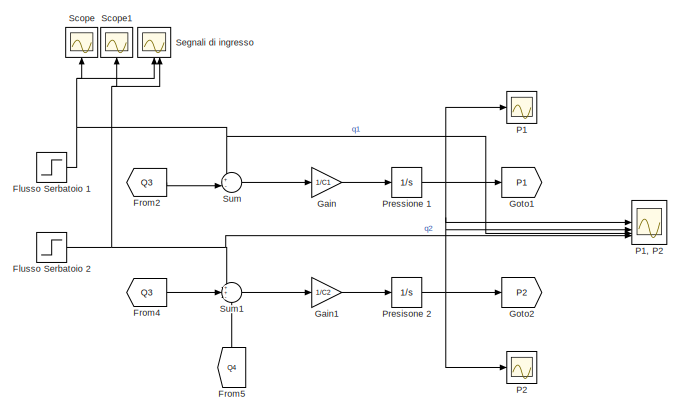
[diagram: root canvas - part 1/2, left side, full height]
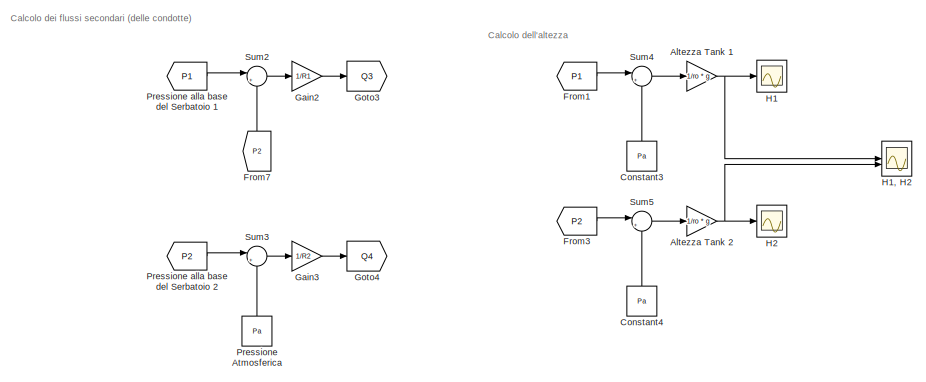
[diagram: root canvas - part 2/2, right side, full height]
MODEL slx_e9e96f8d6b7e
KIND model
CONFIG AbsTol = auto
CONFIG EnableMultiTasking = off
CONFIG FixedStep = auto
CONFIG MaxStep = auto
CONFIG MinStep = auto
CONFIG RelTol = 1e-3
CONFIG SampleTimeConstraint = Unconstrained
CONFIG SolverName = VariableStepAuto
CONFIG StartTime = 0.0
CONFIG StopTime = 1000
BLOCK [Gain] Altezza Tank 1
  Gain = 1/ro * g
BLOCK [Gain] Altezza Tank 2
  Gain = 1/ro * g
BLOCK [Constant] Constant3
  NameLocation = right
  Value = Pa
BLOCK [Constant] Constant4
  NameLocation = right
  Value = Pa
BLOCK [Step] Flusso Serbatoio 1
  After = Q12
  Before = Q11
  SampleTime = 0.01
  Time = 500
BLOCK [Step] Flusso Serbatoio 2
  After = Q22
  Before = Q21
  SampleTime = 0.01
  Time = 800
BLOCK [From] From1
  GotoTag = P1
BLOCK [From] From2
  GotoTag = Q3
BLOCK [From] From3
  GotoTag = P2
BLOCK [From] From4
  GotoTag = Q3
BLOCK [From] From5
  GotoTag = Q4
  NameLocation = right
BLOCK [From] From7
  GotoTag = P2
  NameLocation = right
BLOCK [Gain] Gain
  Gain = 1/C1
BLOCK [Gain] Gain1
  Gain = 1/C2
BLOCK [Gain] Gain2
  Gain = 1/R1
BLOCK [Gain] Gain3
  Gain = 1/R2
BLOCK [Goto] Goto1
  GotoTag = P1
BLOCK [Goto] Goto2
  GotoTag = P2
BLOCK [Goto] Goto3
  GotoTag = Q3
BLOCK [Goto] Goto4
  GotoTag = Q4
BLOCK [Scope] H1
  Floating = off
  NumInputPorts = 1
  ScopeSpecificationString = Simulink.scopes.TimeScopeBlockCfg('CurrentConfiguration', extmgr.ConfigurationSet(extmgr.Configuration('Core','General UI',true),extmgr.Configuration('Core','Source UI',true),extmgr.Configuration('Sources','WiredSimulink',true,'DataLoggingVariableName','ScopeData2'),extmgr.Configuration('Visuals','Time Domain',true,'SerializedDisplays',{struct('MinYLimReal','-0.00363','MaxYLimReal','0.03268','YLab...<+1413ch>
BLOCK [Scope] H1, H2
  Floating = off
  NumInputPorts = 2
  ScopeSpecificationString = Simulink.scopes.TimeScopeBlockCfg('CurrentConfiguration', extmgr.ConfigurationSet(extmgr.Configuration('Core','General UI',true),extmgr.Configuration('Core','Source UI',true),extmgr.Configuration('Sources','WiredSimulink',true,'DataLoggingVariableName','ScopeData4'),extmgr.Configuration('Visuals','Time Domain',true,'SerializedDisplays',{struct('MinYLimReal','0.02778','MaxYLimReal','0.19805','YLabe...<+1474ch>
BLOCK [Scope] H2
  Floating = off
  NumInputPorts = 1
  ScopeSpecificationString = Simulink.scopes.TimeScopeBlockCfg('CurrentConfiguration', extmgr.ConfigurationSet(extmgr.Configuration('Core','General UI',true),extmgr.Configuration('Core','Source UI',true),extmgr.Configuration('Sources','WiredSimulink',true,'DataLoggingVariableName','ScopeData3'),extmgr.Configuration('Visuals','Time Domain',true,'SerializedDisplays',{struct('MinYLimReal','-0.00245','MaxYLimReal','0.02207','YLab...<+1393ch>
BLOCK [Scope] P1
  Floating = off
  NumInputPorts = 1
  ScopeSpecificationString = Simulink.scopes.TimeScopeBlockCfg('CurrentConfiguration', extmgr.ConfigurationSet(extmgr.Configuration('Core','General UI',true),extmgr.Configuration('Core','Source UI',true),extmgr.Configuration('Sources','WiredSimulink',true),extmgr.Configuration('Visuals','Time Domain',true,'SerializedDisplays',{struct('MinYLimReal','-0.3666','MaxYLimReal','3.29936','YLabelReal','','MinYLimMag','0.00000','MaxYL...<+1378ch>
BLOCK [Scope] P1, P2
  Floating = off
  NumInputPorts = 4
  ScopeSpecificationString = Simulink.scopes.TimeScopeBlockCfg('CurrentConfiguration', extmgr.ConfigurationSet(extmgr.Configuration('Core','General UI',true),extmgr.Configuration('Core','Source UI',true),extmgr.Configuration('Sources','WiredSimulink',true,'DataLoggingVariableName','ScopeData5'),extmgr.Configuration('Visuals','Time Domain',true,'SerializedDisplays',{struct('MinYLimReal','0.27598','MaxYLimReal','17.27398','YLab...<+1469ch>
BLOCK [Scope] P2
  Floating = off
  NumInputPorts = 1
  ScopeSpecificationString = Simulink.scopes.TimeScopeBlockCfg('CurrentConfiguration', extmgr.ConfigurationSet(extmgr.Configuration('Core','General UI',true),extmgr.Configuration('Core','Source UI',true),extmgr.Configuration('Sources','WiredSimulink',true,'DataLoggingVariableName','ScopeData1'),extmgr.Configuration('Visuals','Time Domain',true,'SerializedDisplays',{struct('MinYLimReal','-0.25','MaxYLimReal','2.25','YLabelReal...<+1381ch>
BLOCK [Integrator] Presisone 2
BLOCK [Integrator] Pressione 1
BLOCK [Constant] Pressione Atmosferica
  NameLocation = right
  Value = Pa
BLOCK [From] Pressione alla base del Serbatoio 1
  GotoTag = P1
BLOCK [From] Pressione alla base del Serbatoio 2
  GotoTag = P2
BLOCK [Scope] Scope
  Floating = off
  NameLocation = right
  NumInputPorts = 1
  ScopeSpecificationString = Simulink.scopes.TimeScopeBlockCfg('CurrentConfiguration', extmgr.ConfigurationSet(extmgr.Configuration('Core','General UI',true),extmgr.Configuration('Core','Source UI',true),extmgr.Configuration('Sources','WiredSimulink',true,'DataLoggingVariableName','ScopeData1'),extmgr.Configuration('Visuals','Time Domain',true,'SerializedDisplays',{struct('MinYLimReal','0.875','MaxYLimReal','2.125','YLabelRea...<+1343ch>
BLOCK [Scope] Scope1
  Floating = off
  NameLocation = right
  NumInputPorts = 1
  ScopeSpecificationString = Simulink.scopes.TimeScopeBlockCfg('CurrentConfiguration', extmgr.ConfigurationSet(extmgr.Configuration('Core','General UI',true),extmgr.Configuration('Core','Source UI',true),extmgr.Configuration('Sources','WiredSimulink',true,'DataLoggingVariableName','ScopeData2'),extmgr.Configuration('Visuals','Time Domain',true,'SerializedDisplays',{struct('MinYLimReal','0.75','MaxYLimReal','3.25','YLabelReal'...<+1335ch>
BLOCK [Scope] Segnali di ingresso
  Floating = off
  NameLocation = right
  NumInputPorts = 2
  ScopeSpecificationString = Simulink.scopes.TimeScopeBlockCfg('CurrentConfiguration', extmgr.ConfigurationSet(extmgr.Configuration('Core','General UI',true),extmgr.Configuration('Core','Source UI',true),extmgr.Configuration('Sources','WiredSimulink',true,'DataLoggingVariableName','ScopeData3'),extmgr.Configuration('Visuals','Time Domain',true,'SerializedDisplays',{struct('MinYLimReal','0.75','MaxYLimReal','3.25','YLabelReal'...<+1368ch>
BLOCK [Sum] Sum
  Inputs = +-|
BLOCK [Sum] Sum1
  Inputs = ++-
BLOCK [Sum] Sum2
  Inputs = |+-
BLOCK [Sum] Sum3
  Inputs = |+-
BLOCK [Sum] Sum4
  Inputs = |+-
BLOCK [Sum] Sum5
  Inputs = |+-
ANNOTATION (root): Calcolo dei flussi secondari (delle condotte)
ANNOTATION (root): Calcolo dell'altezza
NET Altezza Tank 1:1 -> H1, H2:1, H1:1
NET Altezza Tank 2:1 -> H1, H2:2, H2:1
LINE Constant3:1 -> Sum4:2
LINE Constant4:1 -> Sum5:2
NET Flusso Serbatoio 1:1 -> P1, P2:3, Scope:1, Segnali di ingresso:1, Sum:1
NET Flusso Serbatoio 2:1 -> P1, P2:4, Scope1:1, Segnali di ingresso:2, Sum1:1
LINE From1:1 -> Sum4:1
LINE From2:1 -> Sum:2
LINE From3:1 -> Sum5:1
LINE From4:1 -> Sum1:2
LINE From5:1 -> Sum1:3
LINE From7:1 -> Sum2:2
LINE Gain1:1 -> Presisone 2:1
LINE Gain2:1 -> Goto3:1
LINE Gain3:1 -> Goto4:1
LINE Gain:1 -> Pressione 1:1
NET Presisone 2:1 -> Goto2:1, P1, P2:2, P2:1
NET Pressione 1:1 -> Goto1:1, P1, P2:1, P1:1
LINE Pressione Atmosferica:1 -> Sum3:2
LINE Pressione alla base del Serbatoio 1:1 -> Sum2:1
LINE Pressione alla base del Serbatoio 2:1 -> Sum3:1
LINE Sum1:1 -> Gain1:1
LINE Sum2:1 -> Gain2:1
LINE Sum3:1 -> Gain3:1
LINE Sum4:1 -> Altezza Tank 1:1
LINE Sum5:1 -> Altezza Tank 2:1
LINE Sum:1 -> Gain:1
note: NET lines group one-source signal fan-out (src -> all destinations, sorted); 1:1 wires keep LINE
